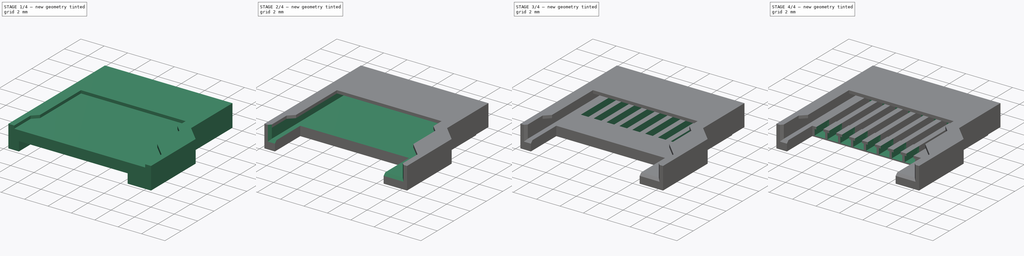
[diagram: build sequence overview — one tinted view per stage of 4, left to right]
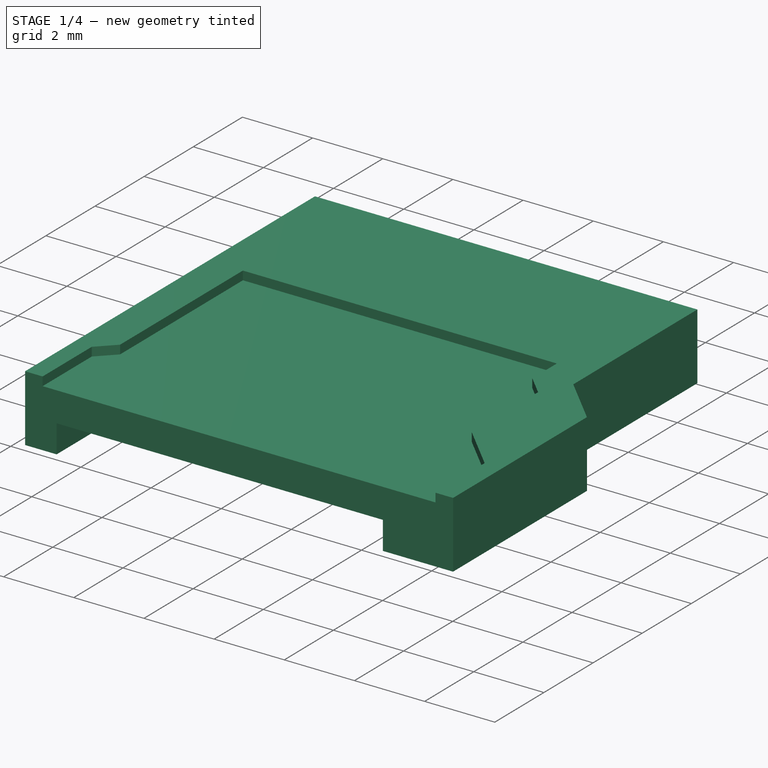
[diagram: stage 1 of 4 — iso view after this stage's code; geometry added in this stage tinted green]
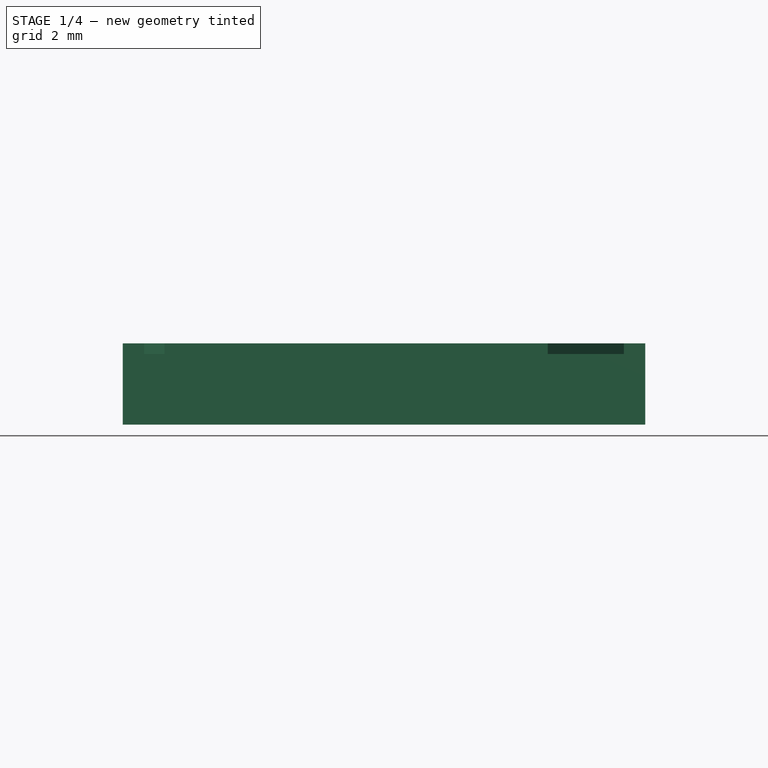
[diagram: stage 1 of 4 — front view after this stage's code; geometry added in this stage tinted green]
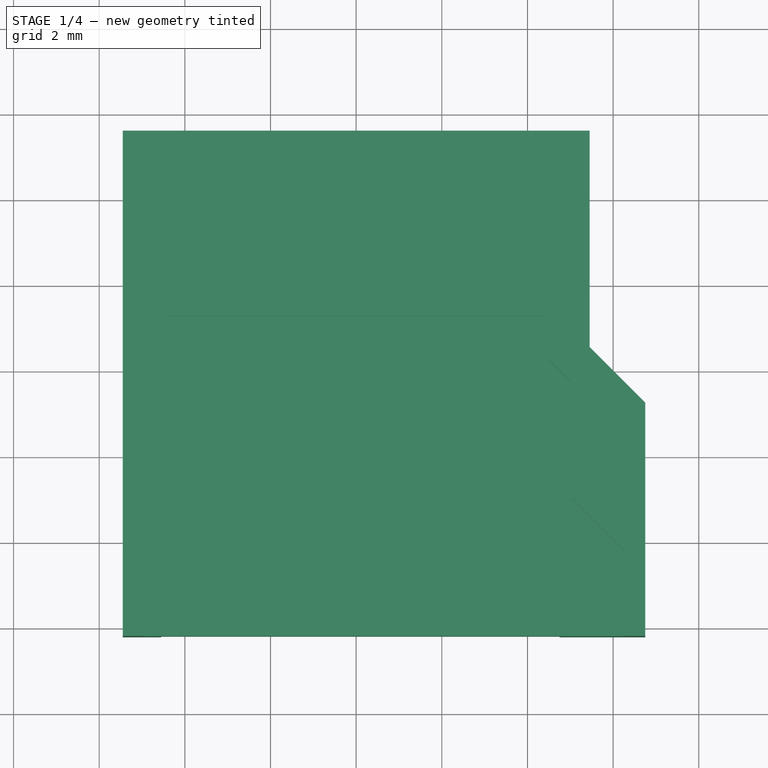
[diagram: stage 1 of 4 — top view after this stage's code; geometry added in this stage tinted green]
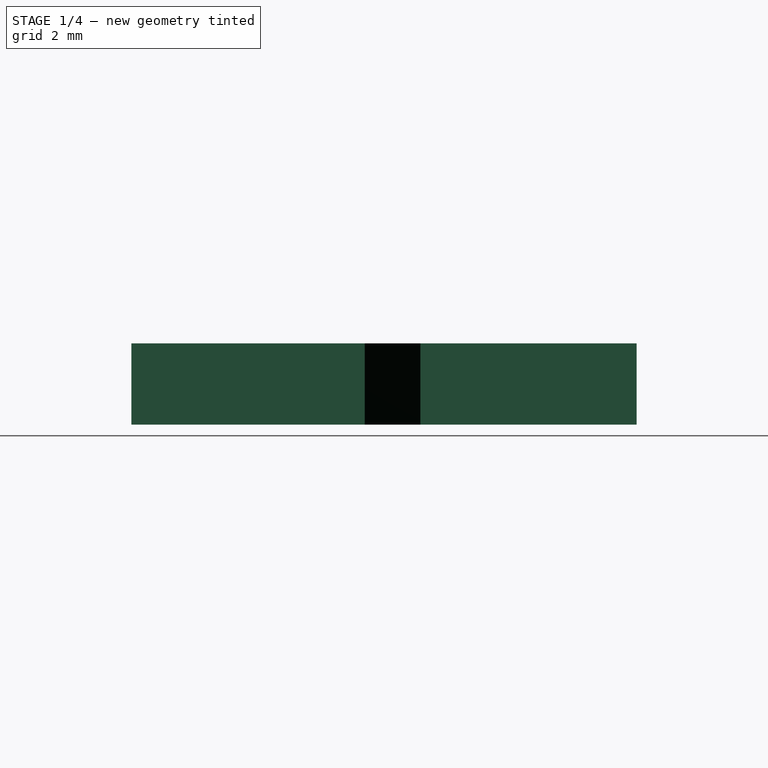
[diagram: stage 1 of 4 — right view after this stage's code; geometry added in this stage tinted green]
FCSTD DOCUMENT  (FreeCAD 0.17R12607 (Git))
Label: MR07C-06200 Body
License: All rights reserved
LicenseURL: http://en.wikipedia.org/wiki/All_rights_reserved
objects: Sketcher::SketchObject×8, PartDesign::Pocket×7, PartDesign::LinearPattern×2, PartDesign::Pad×1, PartDesign::Chamfer×1, PartDesign::Body×1
note: 28 computed .brp shape members not serialized (recipe doc carries the construction recipe); baked Part::Feature solids carry a one-line shape summary decoded from their .brp

FEATURE [Sketcher::SketchObject] Sketch  label="Bottom Sketch"
  MapMode = 5
  Support = -> [XY_Plane]
  sketch-geometry (6):
    g0: LineSegment StartX=6.75 StartY=-2.2 StartZ=0 EndX=6.75 EndY=3.25 EndZ=0
    g1: LineSegment StartX=6.75 StartY=3.25 StartZ=0 EndX=5.45 EndY=4.55 EndZ=0
    g2: LineSegment StartX=5.45 StartY=4.55 StartZ=0 EndX=5.45 EndY=9.6 EndZ=0
    g3: LineSegment StartX=5.45 StartY=9.6 StartZ=0 EndX=-5.45 EndY=9.6 EndZ=0
    g4: LineSegment StartX=-5.45 StartY=9.6 StartZ=0 EndX=-5.45 EndY=-2.2 EndZ=0
    g5: LineSegment StartX=-5.45 StartY=-2.2 StartZ=0 EndX=6.75 EndY=-2.2 EndZ=0
  constraints (18):
    c: Vertical(g0)
    c: Coincident(g0,g1)
    c: Coincident(g1,g2)
    c: Vertical(g2)
    c: Coincident(g2,g3)
    c: Horizontal(g3)
    c: Coincident(g3,g4)
    c: Vertical(g4)
    c: DistanceY(g4,g4) = 11.8
    c: DistanceX(g3,g3) = 10.9
    c: DistanceY(g0,g0) = 5.45
    c: Angle(g1) = 2.35619
    c: DistanceX(g3) = -5.45
    c: DistanceY(g3) = 9.6
    c: Coincident(g5,g4)
    c: Coincident(g5,g0)
    c: Horizontal(g5)
    c: DistanceX(g5,g5) = 12.2
FEATURE [PartDesign::Pad] Pad  label="Bottom"
  Length = 1.9
  Length2 = 100
  Profile = -> Sketch
  Type = 0
FEATURE [Sketcher::SketchObject] Sketch001  label="Pin Cavity Sketch"
  ExternalGeometry = -> [Pad]
  MapMode = 5
  Placement = pos=(0,0,0) rot=(1,0,0;3.14159rad)
  Support = -> [Pad]
  sketch-geometry (4):
    g0: LineSegment StartX=4.75 StartY=2.2 StartZ=0 EndX=-4.55 EndY=2.2 EndZ=0
    g1: LineSegment StartX=-4.55 StartY=2.2 StartZ=0 EndX=-4.55 EndY=-0.9 EndZ=0
    g2: LineSegment StartX=-4.55 StartY=-0.9 StartZ=0 EndX=4.75 EndY=-0.9 EndZ=0
    g3: LineSegment StartX=4.75 StartY=-0.9 StartZ=0 EndX=4.75 EndY=2.2 EndZ=0
  constraints (12):
    c: Coincident(g0,g1)
    c: Coincident(g1,g2)
    c: Coincident(g2,g3)
    c: Coincident(g3,g0)
    c: Horizontal(g0)
    c: Horizontal(g2)
    c: Vertical(g1)
    c: Vertical(g3)
    c: PointOnObject(g0,g-3)
    c: DistanceX(g0,g0) = 9.3
    c: DistanceY(g3,g3) = 3.1
    c: Distance(g0,g-3) = 0.9
FEATURE [PartDesign::Pocket] Pocket  label="Pin Cavity"
  BaseFeature = -> Pad
  Length = 0.8
  Profile = -> Sketch001
  Type = 0
FEATURE [Sketcher::SketchObject] Sketch002  label="Top Sketch"
  ExternalGeometry = -> [Pocket]
  MapMode = 5
  Placement = pos=(0,0,1.9) rot=(0,0,1;0rad)
  Support = -> [Pocket]
  sketch-geometry (10):
    g0: LineSegment StartX=-4.95 StartY=-2.2 StartZ=0 EndX=-4.95 EndY=-0.2 EndZ=0
    g1: LineSegment StartX=-4.95 StartY=-0.2 StartZ=0 EndX=-4.475 EndY=0.275 EndZ=0
    g2: LineSegment StartX=-4.475 StartY=0.275 StartZ=0 EndX=-4.475 EndY=5.275 EndZ=0
    g3: LineSegment StartX=-4.475 StartY=5.275 StartZ=0 EndX=4.475 EndY=5.275 EndZ=0
    g4: LineSegment StartX=4.475 StartY=5.275 StartZ=0 EndX=4.475 EndY=4.275 EndZ=0
    g5: LineSegment StartX=4.475 StartY=4.275 StartZ=0 EndX=5.025 EndY=3.725 EndZ=0
    g6: LineSegment StartX=5.025 StartY=3.725 StartZ=0 EndX=5.025 EndY=1.025 EndZ=0
    g7: LineSegment StartX=5.025 StartY=1.025 StartZ=0 EndX=6.25 EndY=-0.2 EndZ=0
    g8: LineSegment StartX=6.25 StartY=-0.2 StartZ=0 EndX=6.25 EndY=-2.2 EndZ=0
    g9: LineSegment StartX=6.25 StartY=-2.2 StartZ=0 EndX=-4.95 EndY=-2.2 EndZ=0
  constraints (30):
    c: PointOnObject(g0,g-3)
    c: Vertical(g0)
    c: Coincident(g0,g1)
    c: Coincident(g1,g2)
    c: Vertical(g2)
    c: Coincident(g2,g3)
    c: Horizontal(g3)
    c: Coincident(g3,g4)
    c: Vertical(g4)
    c: Coincident(g4,g5)
    c: Coincident(g5,g6)
    c: Vertical(g6)
    c: Coincident(g6,g7)
    c: Coincident(g7,g8)
    c: PointOnObject(g8,g-3)
    c: Vertical(g8)
    c: Coincident(g8,g9)
    c: Coincident(g9,g0)
    c: Angle(g7) = -0.785398
    c: Angle(g5) = -0.785398
    c: Angle(g1) = 0.785398
    c: DistanceX(g3,g3) = 8.95
    c: DistanceY(g0,g0) = 2
    c: Equal(g8,g0)
    c: DistanceY(g6,g6) = 2.7
    c: DistanceY(g2,g2) = 5
    c: DistanceY(g4,g4) = 1
    c: Distance(g8,g-3) = 0.5
    c: Distance(g6,g2) = 9.5
    c: Distance(g0,g-3) = 0.5
FEATURE [PartDesign::Pocket] Pocket001  label="Top"
  BaseFeature = -> Pocket
  Length = 0.25
  Profile = -> Sketch002
  Type = 0
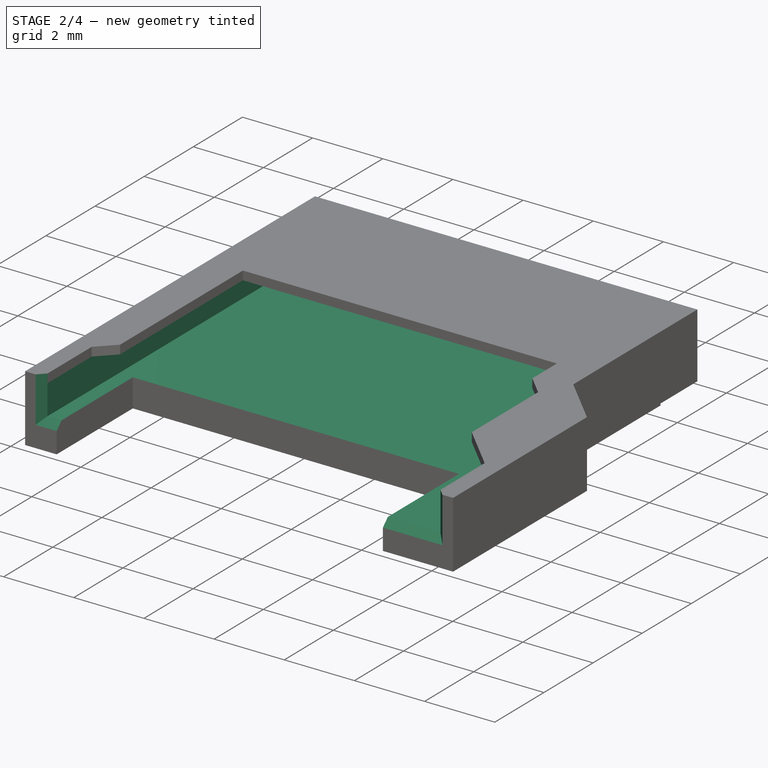
[diagram: stage 2 of 4 — iso view after this stage's code; geometry added in this stage tinted green]
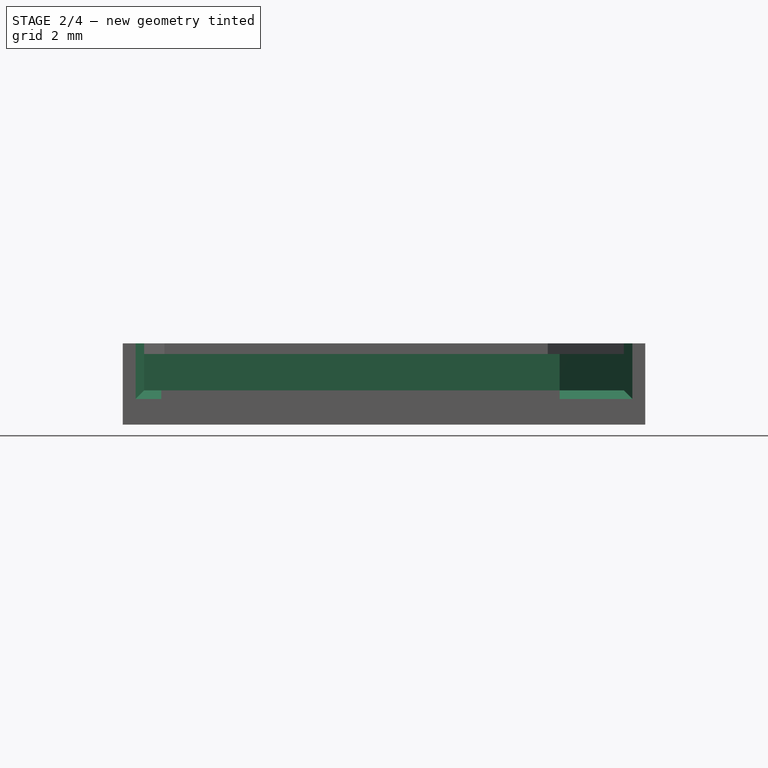
[diagram: stage 2 of 4 — front view after this stage's code; geometry added in this stage tinted green]
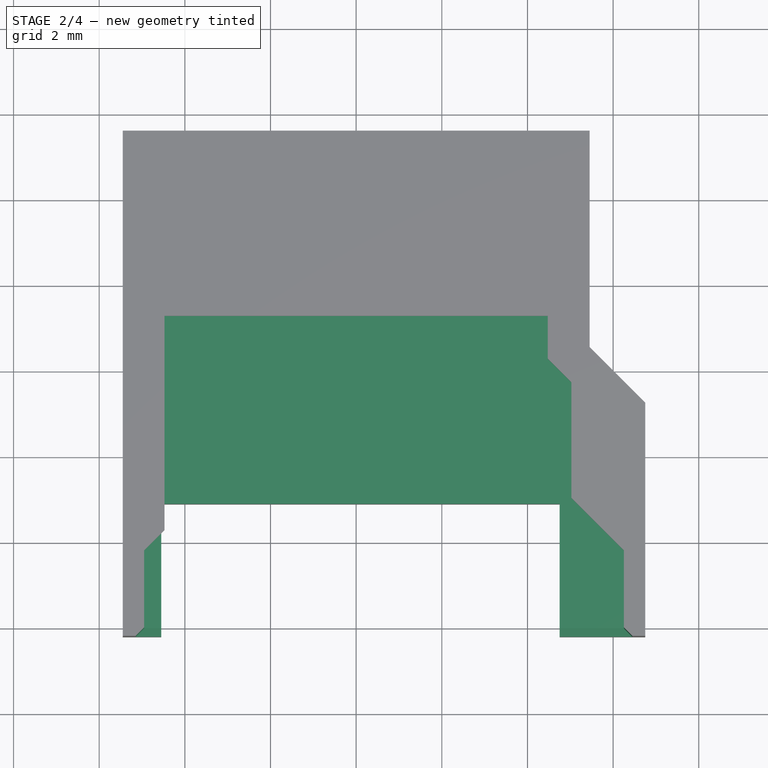
[diagram: stage 2 of 4 — top view after this stage's code; geometry added in this stage tinted green]
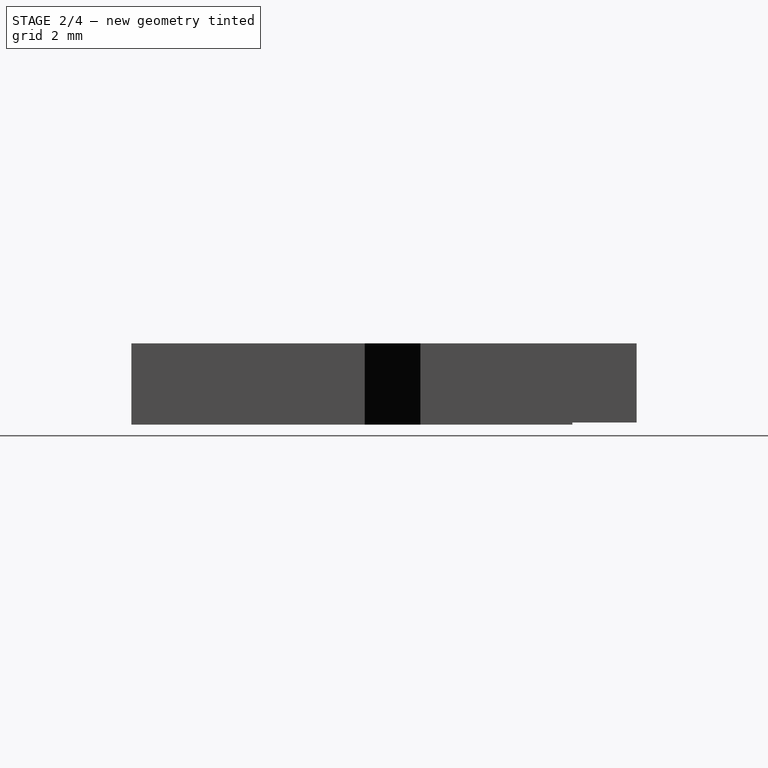
[diagram: stage 2 of 4 — right view after this stage's code; geometry added in this stage tinted green]
FEATURE [Sketcher::SketchObject] Sketch003  label="Slot Sketch"
  MapMode = 5
  Placement = pos=(0,0,1.65) rot=(0,0,1;0rad)
  Support = -> [Pocket001]
  sketch-geometry (6):
    g0: LineSegment StartX=6.25 StartY=-2.2 StartZ=0 EndX=6.25 EndY=2.9 EndZ=0
    g1: LineSegment StartX=6.25 StartY=2.9 StartZ=0 EndX=4.75 EndY=4.4 EndZ=0
    g2: LineSegment StartX=4.75 StartY=4.4 StartZ=0 EndX=4.75 EndY=9.3 EndZ=0
    g3: LineSegment StartX=4.75 StartY=9.3 StartZ=0 EndX=-4.95 EndY=9.3 EndZ=0
    g4: LineSegment StartX=-4.95 StartY=9.3 StartZ=0 EndX=-4.95 EndY=-2.2 EndZ=0
    g5: LineSegment StartX=-4.95 StartY=-2.2 StartZ=0 EndX=6.25 EndY=-2.2 EndZ=0
  constraints (18):
    c: Coincident(g0,g1)
    c: Coincident(g1,g2)
    c: Vertical(g2)
    c: Coincident(g2,g3)
    c: Coincident(g3,g4)
    c: Vertical(g4)
    c: Angle(g1) = 2.35619
    c: Vertical(g0)
    c: Distance(g1,g0) = 1.5
    c: DistanceY(g4,g4) = 11.5
    c: Horizontal(g3)
    c: Distance(g0,g3) = 6.4
    c: DistanceX(g4) = -4.95
    c: DistanceY(g4) = -2.2
    c: Coincident(g5,g4)
    c: Horizontal(g5)
    c: DistanceX(g5,g5) = 11.2
    c: Coincident(g0,g5)
FEATURE [PartDesign::Pocket] Pocket002  label="Slot"
  BaseFeature = -> Pocket001
  Length = 0.85
  Profile = -> Sketch003
  Type = 0
FEATURE [PartDesign::Chamfer] Chamfer
  Base = -> Pocket002 [Edge53,Edge52,Edge45,Edge10,Edge9,Edge8]
  BaseFeature = -> Pocket002
  Size = 0.2
FEATURE [Sketcher::SketchObject] Sketch004  label="Ground Pa Recess Sketch"
  ExternalGeometry = -> [Chamfer]
  MapMode = 5
  Placement = pos=(0,0,0) rot=(1,0,0;3.14159rad)
  Support = -> [Chamfer]
  sketch-geometry (4):
    g0: LineSegment StartX=-5.45 StartY=-9.6 StartZ=0 EndX=5.45 EndY=-9.6 EndZ=0
    g1: LineSegment StartX=5.45 StartY=-9.6 StartZ=0 EndX=5.45 EndY=-8.1 EndZ=0
    g2: LineSegment StartX=5.45 StartY=-8.1 StartZ=0 EndX=-5.45 EndY=-8.1 EndZ=0
    g3: LineSegment StartX=-5.45 StartY=-8.1 StartZ=0 EndX=-5.45 EndY=-9.6 EndZ=0
  constraints (11):
    c: Coincident(g0,g1)
    c: Coincident(g1,g2)
    c: Coincident(g2,g3)
    c: Coincident(g3,g0)
    c: Horizontal(g0)
    c: Horizontal(g2)
    c: Vertical(g1)
    c: Vertical(g3)
    c: Coincident(g0,g-3)
    c: Coincident(g0,g-3)
    c: DistanceY(g1,g1) = 1.5
FEATURE [PartDesign::Pocket] Pocket003  label="Ground Pad Recess"
  BaseFeature = -> Chamfer
  Length = 0.05
  Profile = -> Sketch004
  Type = 0
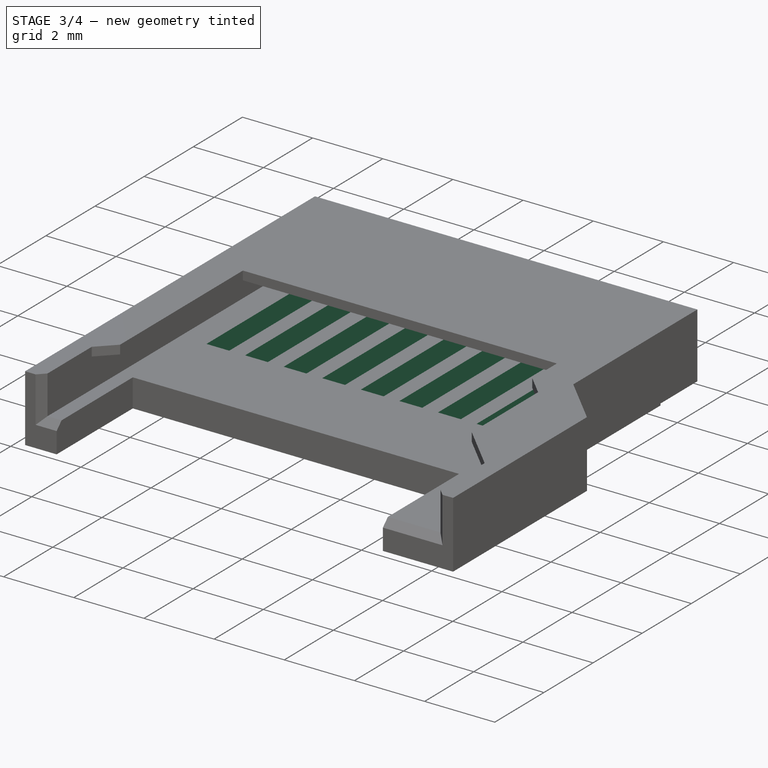
[diagram: stage 3 of 4 — iso view after this stage's code; geometry added in this stage tinted green]
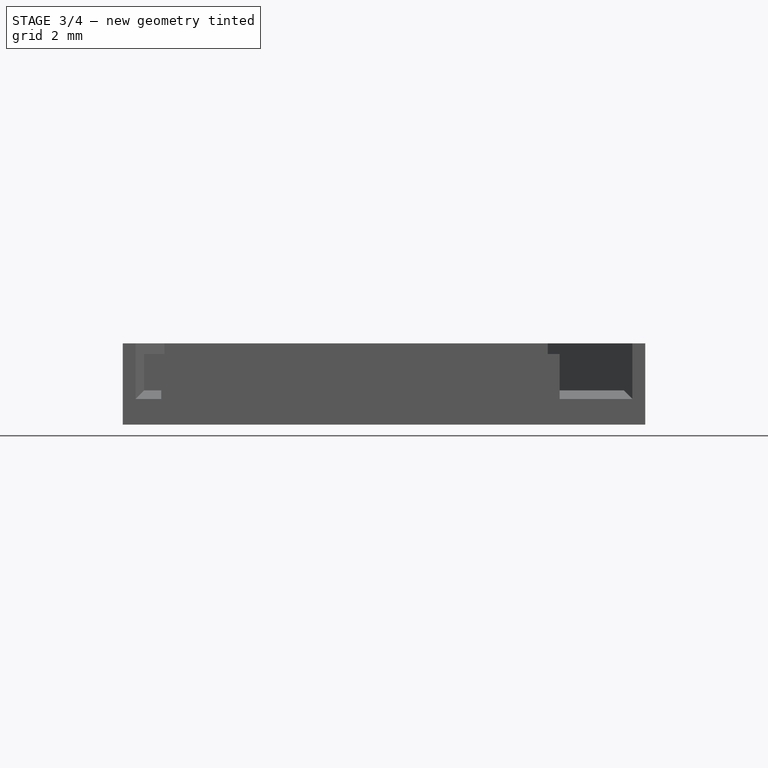
[diagram: stage 3 of 4 — front view after this stage's code; geometry added in this stage tinted green]
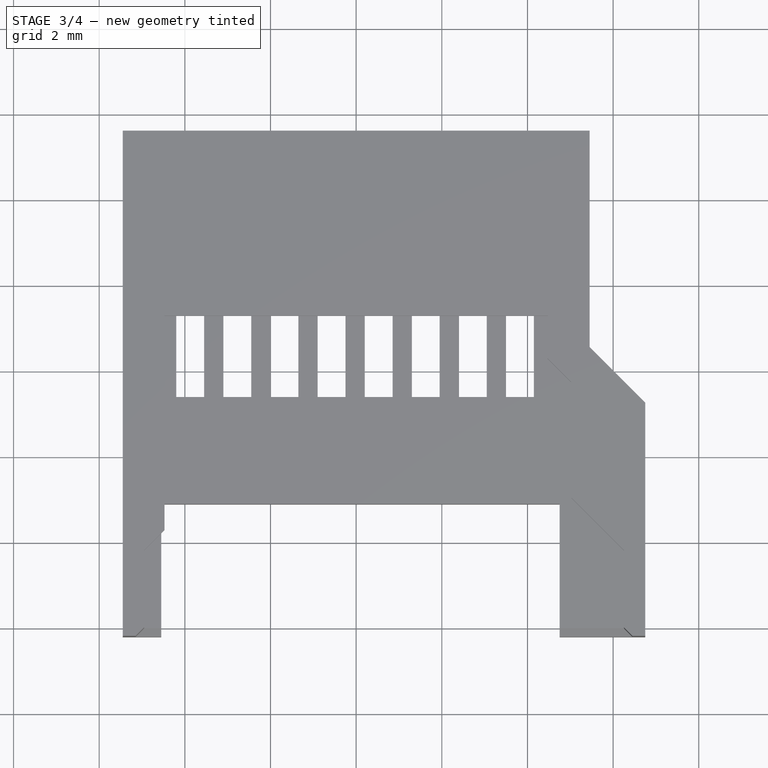
[diagram: stage 3 of 4 — top view after this stage's code; geometry added in this stage tinted green]
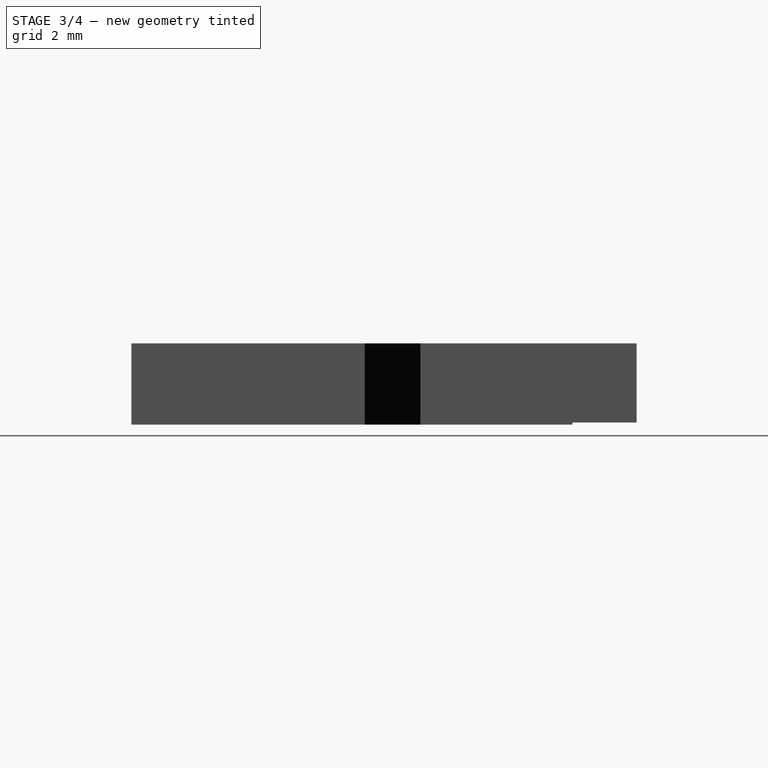
[diagram: stage 3 of 4 — right view after this stage's code; geometry added in this stage tinted green]
FEATURE [Sketcher::SketchObject] Sketch005  label="Pin Hole Sketch"
  ExternalGeometry = -> [Pocket003]
  MapMode = 5
  Placement = pos=(0,0,0) rot=(1,0,0;3.14159rad)
  Support = -> [Pocket003]
  sketch-geometry (4):
    g0: LineSegment StartX=3.5 StartY=-3.4 StartZ=0 EndX=4.15 EndY=-3.4 EndZ=0
    g1: LineSegment StartX=4.15 StartY=-3.4 StartZ=0 EndX=4.15 EndY=-8.35 EndZ=0
    g2: LineSegment StartX=4.15 StartY=-8.35 StartZ=0 EndX=3.5 EndY=-8.35 EndZ=0
    g3: LineSegment StartX=3.5 StartY=-8.35 StartZ=0 EndX=3.5 EndY=-3.4 EndZ=0
  constraints (12):
    c: Coincident(g0,g1)
    c: Coincident(g1,g2)
    c: Coincident(g2,g3)
    c: Coincident(g3,g0)
    c: Horizontal(g0)
    c: Horizontal(g2)
    c: Vertical(g1)
    c: Vertical(g3)
    c: DistanceX(g2,g2) = 0.65
    c: DistanceY(g3,g3) = 4.95
    c: Distance(g0,g-4) = 0.6
    c: Distance(g0,g-3) = 2.5
FEATURE [PartDesign::Pocket] Pocket004  label="Pin Hole"
  BaseFeature = -> Pocket003
  Length = 5
  Profile = -> Sketch005
  Type = 2
FEATURE [PartDesign::LinearPattern] LinearPattern  label="Pin Hole Pattern"
  Direction = -> Sketch005 [H_Axis]
  Length = 7.7
  Occurrences = 8
  Originals = -> [Pocket004]
  Reversed = true
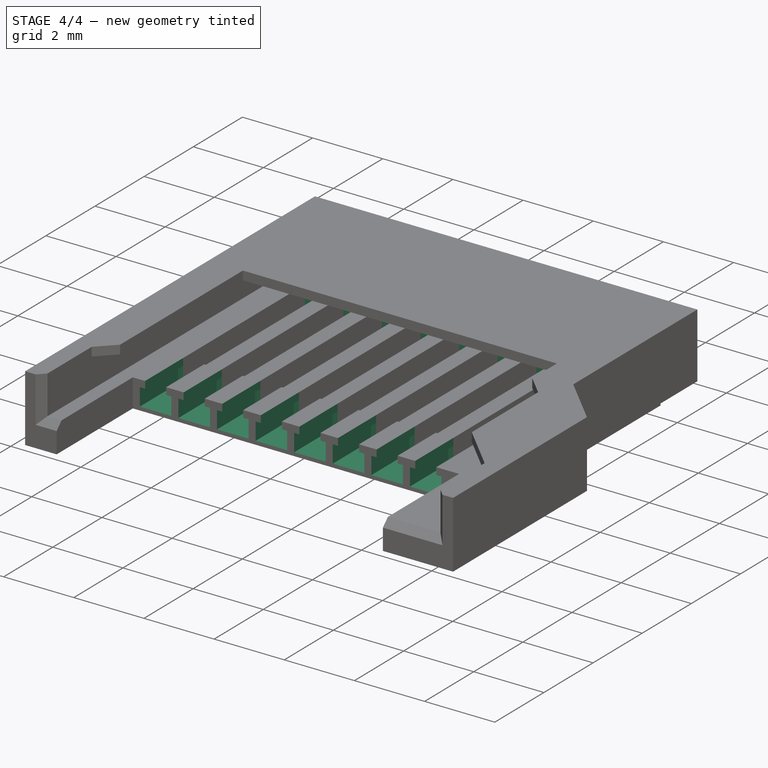
[diagram: stage 4 of 4 — iso view after this stage's code; geometry added in this stage tinted green]
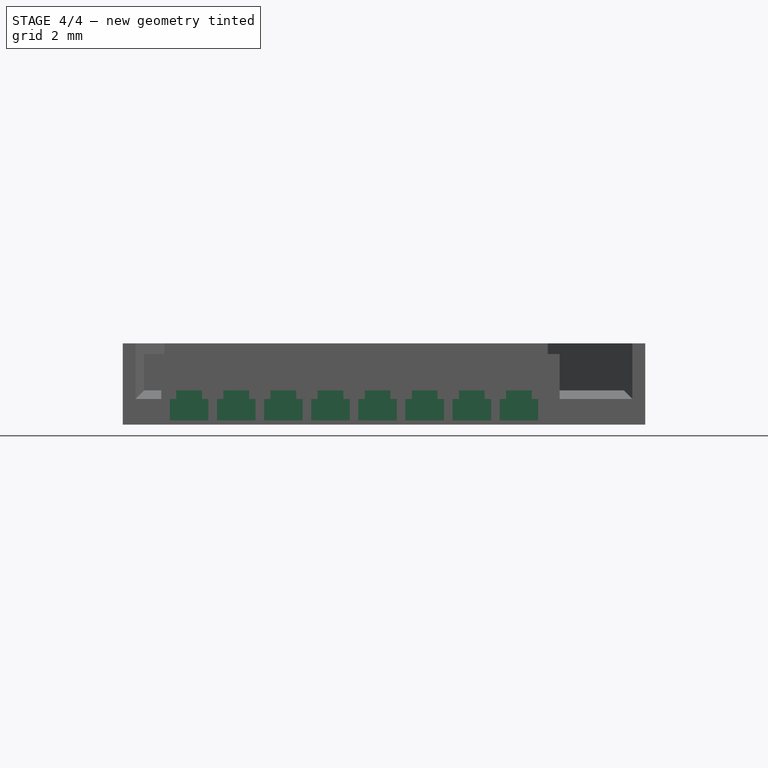
[diagram: stage 4 of 4 — front view after this stage's code; geometry added in this stage tinted green]
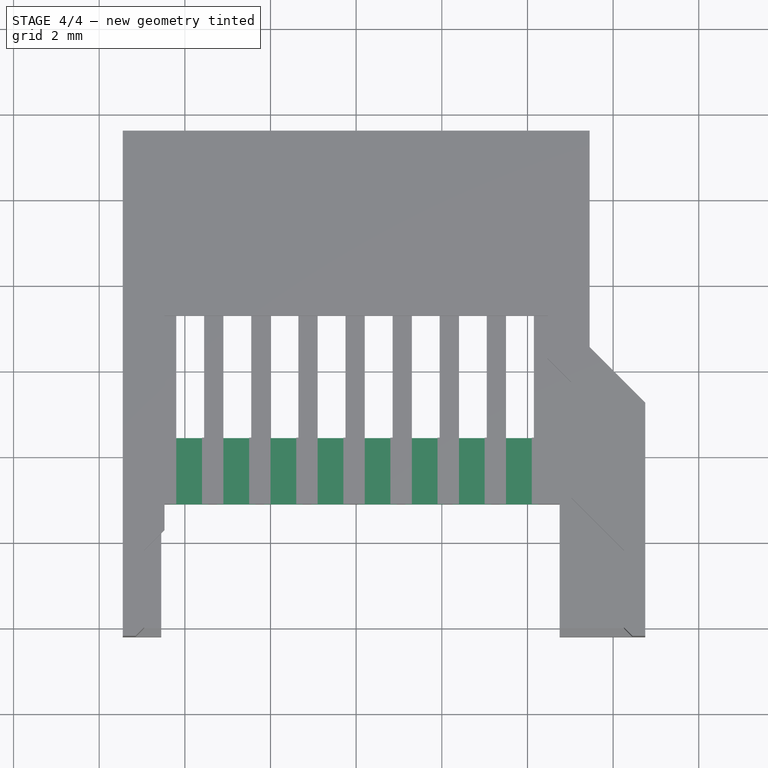
[diagram: stage 4 of 4 — top view after this stage's code; geometry added in this stage tinted green]
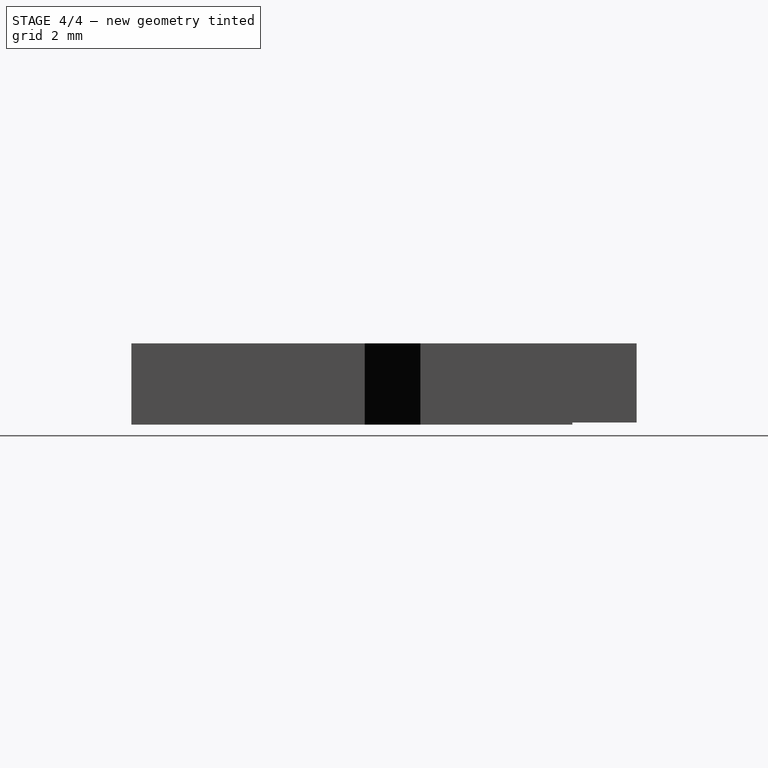
[diagram: stage 4 of 4 — right view after this stage's code; geometry added in this stage tinted green]
FEATURE [Sketcher::SketchObject] Sketch006  label="Pin Slot Sketch"
  ExternalGeometry = -> [LinearPattern]
  MapMode = 5
  Placement = pos=(0,0.9,0) rot=(1,0,0;1.5708rad)
  Support = -> [LinearPattern]
  sketch-geometry (8):
    g0: LineSegment StartX=4.25 StartY=0.6 StartZ=0 EndX=4.1 EndY=0.6 EndZ=0
    g1: LineSegment StartX=4.1 StartY=0.6 StartZ=0 EndX=4.1 EndY=0.8 EndZ=0
    g2: LineSegment StartX=4.1 StartY=0.8 StartZ=0 EndX=3.5 EndY=0.8 EndZ=0
    g3: LineSegment StartX=3.5 StartY=0.8 StartZ=0 EndX=3.5 EndY=0.6 EndZ=0
    g4: LineSegment StartX=3.5 StartY=0.6 StartZ=0 EndX=3.35 EndY=0.6 EndZ=0
    g5: LineSegment StartX=4.25 StartY=0.6 StartZ=0 EndX=4.25 EndY=0.1 EndZ=0
    g6: LineSegment StartX=4.25 StartY=0.1 StartZ=0 EndX=3.35 EndY=0.1 EndZ=0
    g7: LineSegment StartX=3.35 StartY=0.1 StartZ=0 EndX=3.35 EndY=0.6 EndZ=0
  constraints (24):
    c: Horizontal(g0)
    c: Coincident(g0,g1)
    c: Coincident(g1,g2)
    c: Coincident(g2,g3)
    c: Coincident(g3,g4)
    c: Horizontal(g4)
    c: Horizontal(g2)
    c: Vertical(g1)
    c: Vertical(g3)
    c: Equal(g0,g4)
    c: DistanceX(g2,g2) = 0.6
    c: PointOnObject(g1,g-4)
    c: Coincident(g0,g5)
    c: Vertical(g5)
    c: Coincident(g5,g6)
    c: Horizontal(g6)
    c: Coincident(g6,g7)
    c: Coincident(g7,g4)
    c: Vertical(g7)
    c: Equal(g5,g7)
    c: Distance(g-3,g5) = 0.5
    c: Distance(g-3,g6) = 0.1
    c: DistanceY(g5,g5) = 0.5
    c: DistanceX(g6,g6) = 0.9
FEATURE [PartDesign::Pocket] Pocket005  label="Pin Slot"
  BaseFeature = -> LinearPattern
  Length = 5
  Profile = -> Sketch006
  Type = 2
FEATURE [PartDesign::LinearPattern] LinearPattern001  label="Pin Slot Pattern"
  Direction = -> Sketch006 [H_Axis]
  Length = 7.7
  Occurrences = 8
  Originals = -> [Pocket005]
  Reversed = true
FEATURE [Sketcher::SketchObject] Sketch007  label="Ground Pin Hole Sketch"
  ExternalGeometry = -> [LinearPattern001]
  MapMode = 5
  Placement = pos=(0,0,0.05) rot=(1,0,0;3.14159rad)
  Support = -> [LinearPattern001]
  sketch-geometry (8):
    g0: LineSegment StartX=-3.955 StartY=-9.6 StartZ=0 EndX=-2.105 EndY=-9.6 EndZ=0
    g1: LineSegment StartX=-2.105 StartY=-9.6 StartZ=0 EndX=-2.105 EndY=-8.9 EndZ=0
    g2: LineSegment StartX=-2.105 StartY=-8.9 StartZ=0 EndX=-3.955 EndY=-8.9 EndZ=0
    g3: LineSegment StartX=-3.955 StartY=-8.9 StartZ=0 EndX=-3.955 EndY=-9.6 EndZ=0
    g4: LineSegment StartX=2.105 StartY=-9.6 StartZ=0 EndX=3.955 EndY=-9.6 EndZ=0
    g5: LineSegment StartX=3.955 StartY=-9.6 StartZ=0 EndX=3.955 EndY=-8.9 EndZ=0
    g6: LineSegment StartX=3.955 StartY=-8.9 StartZ=0 EndX=2.105 EndY=-8.9 EndZ=0
    g7: LineSegment StartX=2.105 StartY=-8.9 StartZ=0 EndX=2.105 EndY=-9.6 EndZ=0
  constraints (23):
    c: Coincident(g0,g1)
    c: Coincident(g1,g2)
    c: Coincident(g2,g3)
    c: Coincident(g3,g0)
    c: Horizontal(g0)
    c: Horizontal(g2)
    c: Vertical(g1)
    c: Vertical(g3)
    c: PointOnObject(g0,g-3)
    c: DistanceX(g0,g0) = 1.85
    c: DistanceY(g3,g3) = 0.7
    c: DistanceX(g-2,g0) = -2.105
    c: Coincident(g4,g5)
    c: Coincident(g5,g6)
    c: Coincident(g6,g7)
    c: Coincident(g7,g4)
    c: Horizontal(g4)
    c: Horizontal(g6)
    c: Vertical(g5)
    c: Vertical(g7)
    c: Equal(g7,g1)
    c: Equal(g2,g6)
    c: Symmetric(g0,g4,g-2)
FEATURE [PartDesign::Pocket] Pocket006
  BaseFeature = -> LinearPattern001
  Length = 0.5
  Profile = -> Sketch007
  Type = 0
FEATURE [PartDesign::Body] Body
  Group = -> [Sketch,Pad,Sketch001,Pocket,Sketch002,Pocket001,Sketch003,Pocket002,Chamfer,Sketch004,Pocket003,Sketch005,Pocket004,LinearPattern,Sketch006,Pocket005,LinearPattern001,Sketch007,Pocket006]
  Origin = -> Origin
  Tip = -> Pocket006
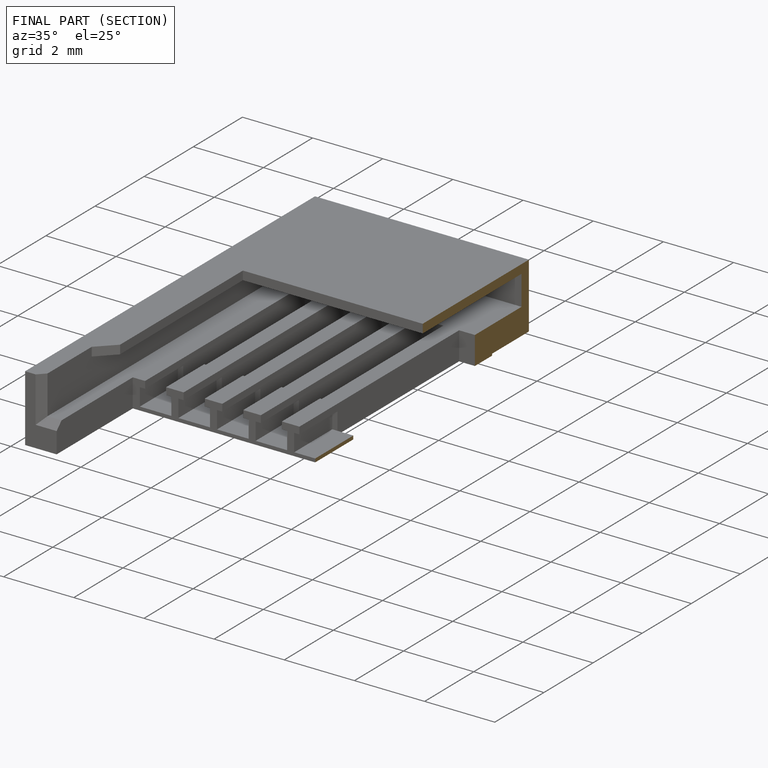
[diagram: finished part — half-section view (interior)]
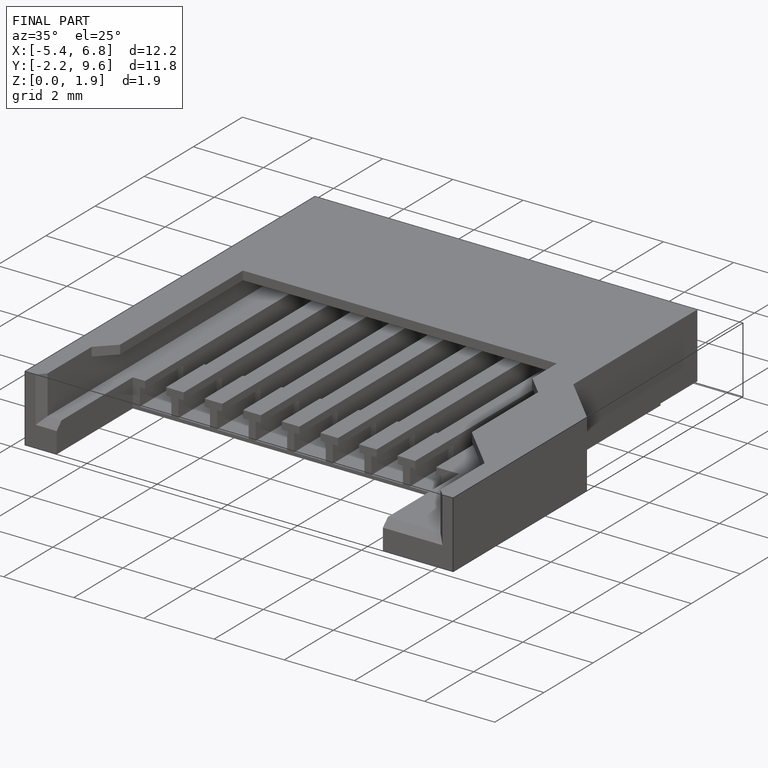
[diagram: finished part — iso view with bounding-box wireframe]
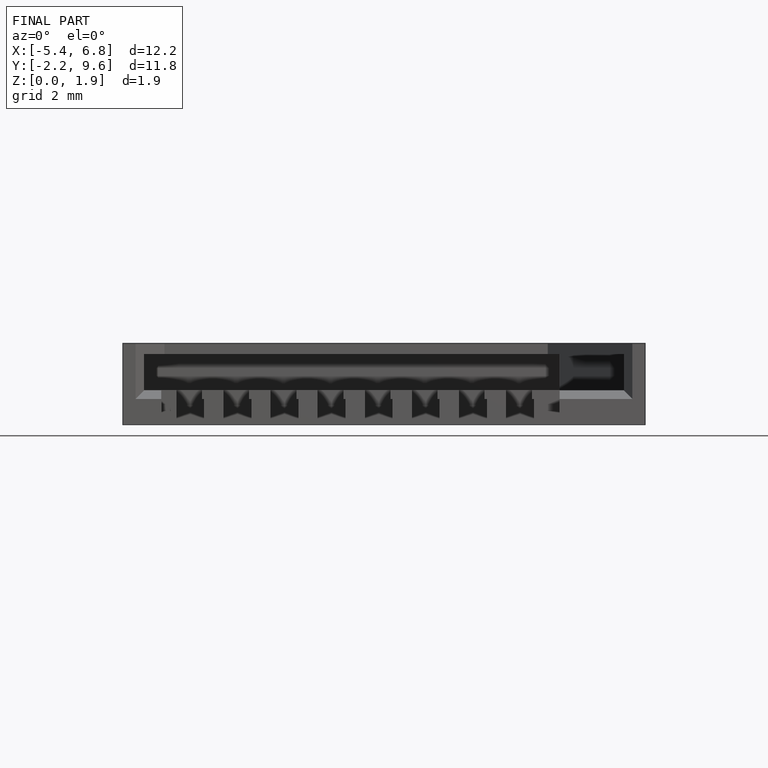
[diagram: finished part — front view with bounding-box wireframe]
